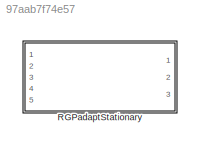
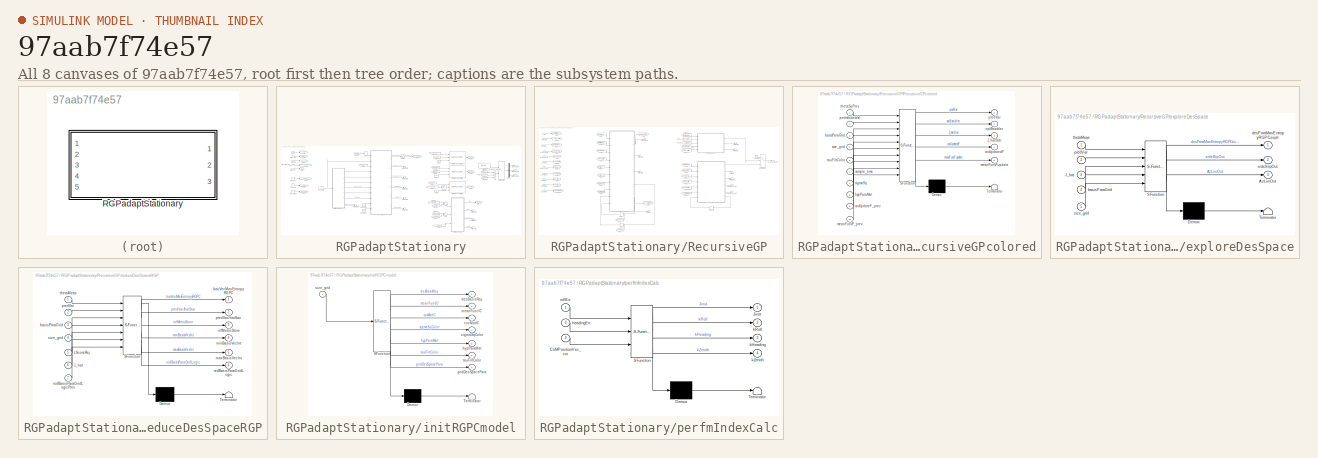
[diagram: thumbnail index - all 8 canvases of the model, root first then tree order]
MODEL slx_97aab7f74e57
KIND library
CONFIG AbsTol = auto
CONFIG EnableMultiTasking = off
CONFIG FixedStep = auto
CONFIG MaxStep = auto
CONFIG MinStep = auto
CONFIG RelTol = 1e-3
CONFIG SampleTimeConstraint = Unconstrained
CONFIG Solver = VariableStepAuto
CONFIG SolverName = VariableStepAuto
CONFIG StartTime = 0.0
CONFIG StopTime = 10.0
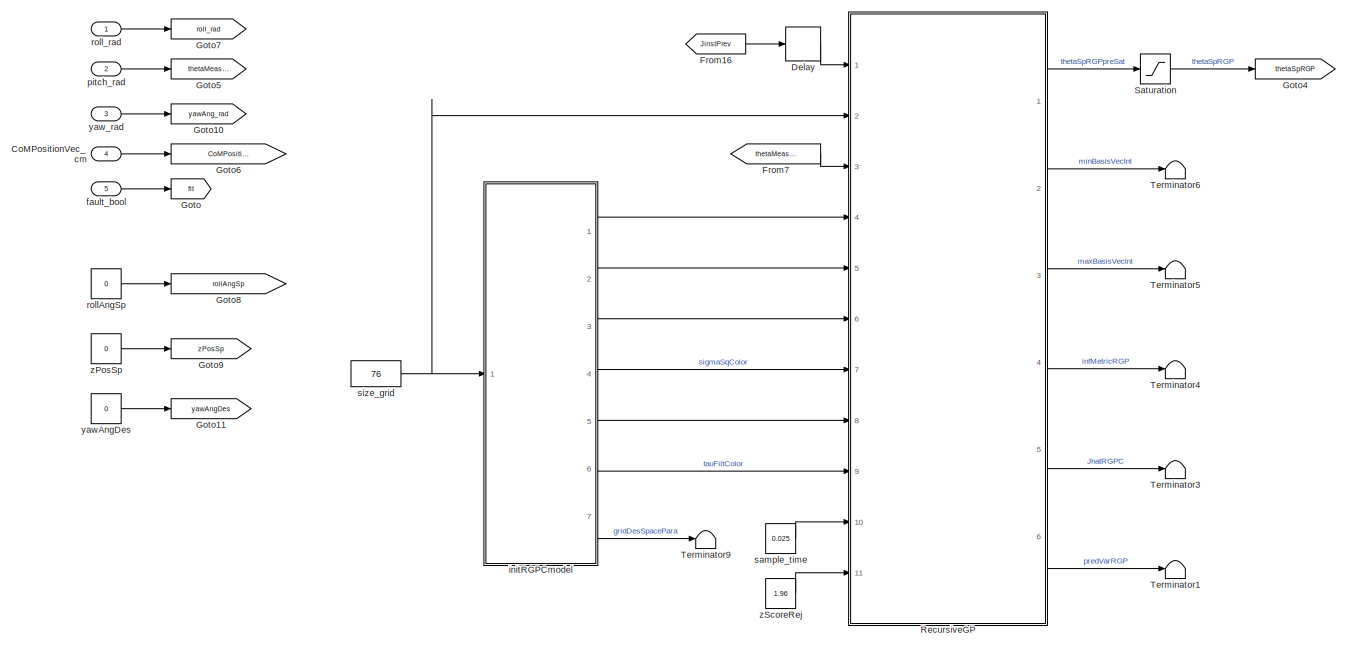
[diagram: RGPadaptStationary - part 1/2, left side, full height]
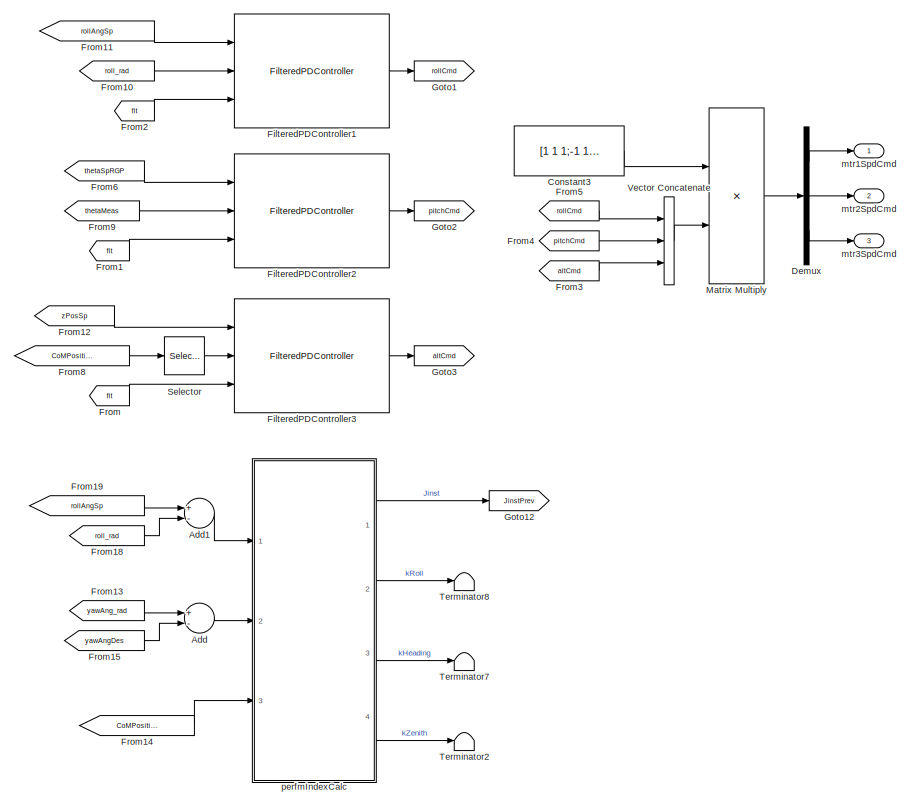
[diagram: RGPadaptStationary - part 2/2, right side, full height]
BLOCK [SubSystem] RGPadaptStationary
  Ports = [5, 3]
  RequestExecContextInheritance = off
BLOCK [Sum] RGPadaptStationary/Add
  InputSameDT = off
  Inputs = +-
  OutDataTypeStr = Inherit: Inherit via internal rule
  Ports = [2, 1]
  SaturateOnIntegerOverflow = off
BLOCK [Sum] RGPadaptStationary/Add1
  InputSameDT = off
  Inputs = +-
  OutDataTypeStr = Inherit: Inherit via internal rule
  Ports = [2, 1]
  SaturateOnIntegerOverflow = off
BLOCK [Inport] RGPadaptStationary/CoMPositionVec_cm
  IconDisplay = Port number
  Port = 4
BLOCK [Constant] RGPadaptStationary/Constant3
  Value = [1 1 1;-1 1 1;0 -1 1]
BLOCK [Delay] RGPadaptStationary/Delay
  DelayLength = 1
  InputPortMap = u0
  Ports = [1, 1]
BLOCK [Demux] RGPadaptStationary/Demux
  DisplayOption = bar
  Outputs = 3
  Ports = [1, 3]
BLOCK [Reference] RGPadaptStationary/FilteredPDController1  REF=filteredPDController_ul/FilteredPDController
  Ports = [3, 1]
  SourceBlock = filteredPDController_ul/FilteredPDController
BLOCK [Reference] RGPadaptStationary/FilteredPDController2  REF=filteredPDController_ul/FilteredPDController
  Ports = [3, 1]
  SourceBlock = filteredPDController_ul/FilteredPDController
BLOCK [Reference] RGPadaptStationary/FilteredPDController3  REF=filteredPDController_ul/FilteredPDController
  Ports = [3, 1]
  SourceBlock = filteredPDController_ul/FilteredPDController
BLOCK [From] RGPadaptStationary/From
  GotoTag = flt
BLOCK [From] RGPadaptStationary/From1
  GotoTag = flt
BLOCK [From] RGPadaptStationary/From10
  GotoTag = roll_rad
BLOCK [From] RGPadaptStationary/From11
  GotoTag = rollAngSp
BLOCK [From] RGPadaptStationary/From12
  GotoTag = zPosSp
BLOCK [From] RGPadaptStationary/From13
  GotoTag = yawAng_rad
BLOCK [From] RGPadaptStationary/From14
  GotoTag = CoMPositionVec_cm
BLOCK [From] RGPadaptStationary/From15
  GotoTag = yawAngDes
BLOCK [From] RGPadaptStationary/From16
  GotoTag = JinstPrev
BLOCK [From] RGPadaptStationary/From18
  GotoTag = roll_rad
BLOCK [From] RGPadaptStationary/From19
  GotoTag = rollAngSp
BLOCK [From] RGPadaptStationary/From2
  GotoTag = flt
BLOCK [From] RGPadaptStationary/From3
  GotoTag = altCmd
BLOCK [From] RGPadaptStationary/From4
  GotoTag = pitchCmd
BLOCK [From] RGPadaptStationary/From5
  GotoTag = rollCmd
BLOCK [From] RGPadaptStationary/From6
  GotoTag = thetaSpRGP
BLOCK [From] RGPadaptStationary/From7
  GotoTag = thetaMeas_rad
BLOCK [From] RGPadaptStationary/From8
  GotoTag = CoMPositionVec_cm
BLOCK [From] RGPadaptStationary/From9
  GotoTag = thetaMeas
BLOCK [Goto] RGPadaptStationary/Goto
  GotoTag = flt
BLOCK [Goto] RGPadaptStationary/Goto1
  GotoTag = rollCmd
BLOCK [Goto] RGPadaptStationary/Goto10
  GotoTag = yawAng_rad
BLOCK [Goto] RGPadaptStationary/Goto11
  GotoTag = yawAngDes
BLOCK [Goto] RGPadaptStationary/Goto12
  GotoTag = JinstPrev
BLOCK [Goto] RGPadaptStationary/Goto2
  GotoTag = pitchCmd
BLOCK [Goto] RGPadaptStationary/Goto3
  GotoTag = altCmd
BLOCK [Goto] RGPadaptStationary/Goto4
  GotoTag = thetaSpRGP
BLOCK [Goto] RGPadaptStationary/Goto5
  GotoTag = thetaMeas_rad
BLOCK [Goto] RGPadaptStationary/Goto6
  GotoTag = CoMPositionVec_cm
BLOCK [Goto] RGPadaptStationary/Goto7
  GotoTag = roll_rad
BLOCK [Goto] RGPadaptStationary/Goto8
  GotoTag = rollAngSp
BLOCK [Goto] RGPadaptStationary/Goto9
  GotoTag = zPosSp
BLOCK [Product] RGPadaptStationary/Matrix Multiply
  InputSameDT = off
  Multiplication = Matrix(*)
  OutDataTypeStr = Inherit: Inherit via internal rule
  Ports = [2, 1]
  RndMeth = Floor
  SaturateOnIntegerOverflow = off
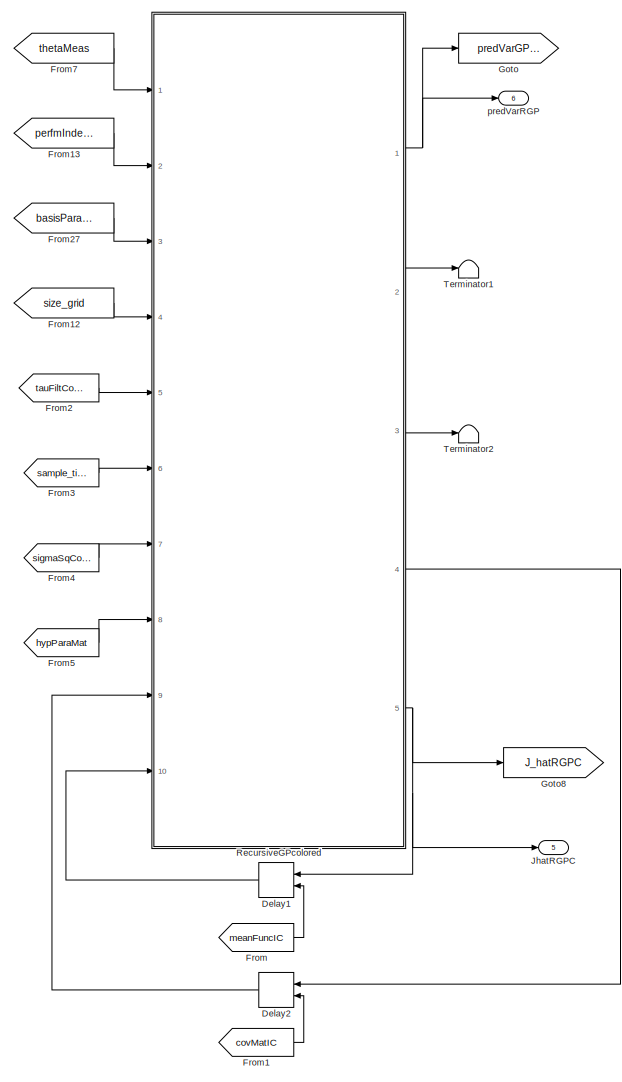
[diagram: RGPadaptStationary/RecursiveGP - part 1/3, center side, full height]
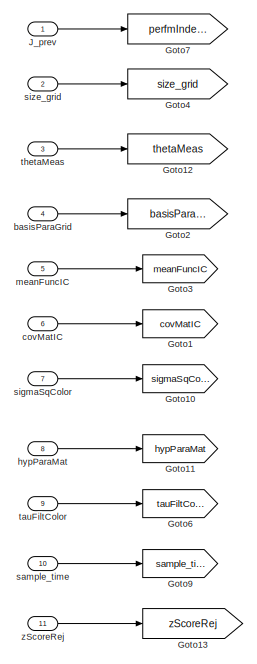
[diagram: RGPadaptStationary/RecursiveGP - part 2/3, top left region]
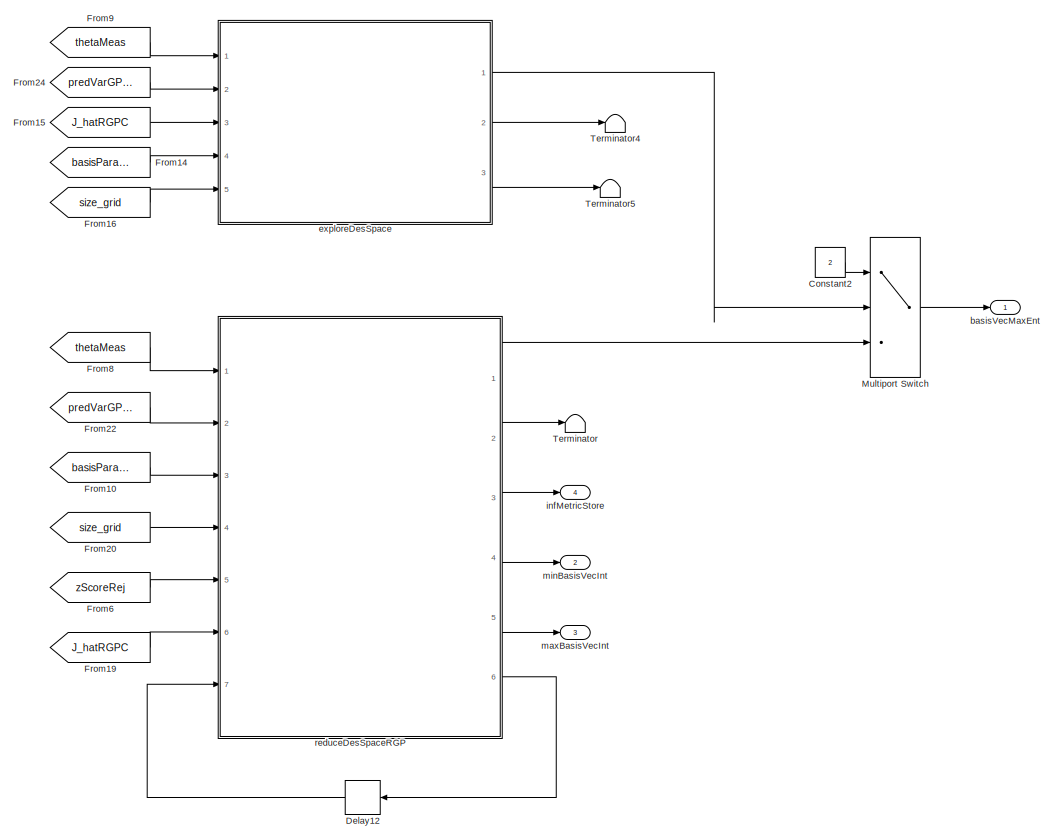
[diagram: RGPadaptStationary/RecursiveGP - part 3/3, right side, full height]
BLOCK [SubSystem] RGPadaptStationary/RecursiveGP
  Ports = [11, 6]
  RequestExecContextInheritance = off
BLOCK [Constant] RGPadaptStationary/RecursiveGP/Constant2
  Value = 2
BLOCK [Delay] RGPadaptStationary/RecursiveGP/Delay1
  DelayLength = 1
  InitialCondition = 0.07*ones(size_grid,1)
  InitialConditionSource = Input port
  InputPortMap = u0,p4
  Ports = [2, 1]
BLOCK [Delay] RGPadaptStationary/RecursiveGP/Delay12
  DelayLength = 1
  InitialCondition = redBasisParaGridLogicIC
  InputPortMap = u0
  Ports = [1, 1]
BLOCK [Delay] RGPadaptStationary/RecursiveGP/Delay2
  DelayLength = 1
  InitialCondition = basisCovNorm*sigmaSqColor
  InitialConditionSource = Input port
  InputPortMap = u0,p4
  Ports = [2, 1]
BLOCK [From] RGPadaptStationary/RecursiveGP/From
  GotoTag = meanFuncIC
BLOCK [From] RGPadaptStationary/RecursiveGP/From1
  GotoTag = covMatIC
BLOCK [From] RGPadaptStationary/RecursiveGP/From10
  GotoTag = basisParaGrid
BLOCK [From] RGPadaptStationary/RecursiveGP/From12
  GotoTag = size_grid
BLOCK [From] RGPadaptStationary/RecursiveGP/From13
  GotoTag = perfmIndexVal
BLOCK [From] RGPadaptStationary/RecursiveGP/From14
  GotoTag = basisParaGrid
BLOCK [From] RGPadaptStationary/RecursiveGP/From15
  GotoTag = J_hatRGPC
BLOCK [From] RGPadaptStationary/RecursiveGP/From16
  GotoTag = size_grid
BLOCK [From] RGPadaptStationary/RecursiveGP/From19
  GotoTag = J_hatRGPC
BLOCK [From] RGPadaptStationary/RecursiveGP/From2
  GotoTag = tauFiltColor
BLOCK [From] RGPadaptStationary/RecursiveGP/From20
  GotoTag = size_grid
BLOCK [From] RGPadaptStationary/RecursiveGP/From22
  GotoTag = predVarGPColored
BLOCK [From] RGPadaptStationary/RecursiveGP/From24
  GotoTag = predVarGPColored
BLOCK [From] RGPadaptStationary/RecursiveGP/From27
  GotoTag = basisParaGrid
BLOCK [From] RGPadaptStationary/RecursiveGP/From3
  GotoTag = sample_time
BLOCK [From] RGPadaptStationary/RecursiveGP/From4
  GotoTag = sigmaSqColor
BLOCK [From] RGPadaptStationary/RecursiveGP/From5
  GotoTag = hypParaMat
BLOCK [From] RGPadaptStationary/RecursiveGP/From6
  GotoTag = zScoreRej
BLOCK [From] RGPadaptStationary/RecursiveGP/From7
  GotoTag = thetaMeas
BLOCK [From] RGPadaptStationary/RecursiveGP/From8
  GotoTag = thetaMeas
BLOCK [From] RGPadaptStationary/RecursiveGP/From9
  GotoTag = thetaMeas
BLOCK [Goto] RGPadaptStationary/RecursiveGP/Goto
  GotoTag = predVarGPColored
BLOCK [Goto] RGPadaptStationary/RecursiveGP/Goto1
  GotoTag = covMatIC
BLOCK [Goto] RGPadaptStationary/RecursiveGP/Goto10
  GotoTag = sigmaSqColor
BLOCK [Goto] RGPadaptStationary/RecursiveGP/Goto11
  GotoTag = hypParaMat
BLOCK [Goto] RGPadaptStationary/RecursiveGP/Goto12
  GotoTag = thetaMeas
BLOCK [Goto] RGPadaptStationary/RecursiveGP/Goto13
  GotoTag = zScoreRej
BLOCK [Goto] RGPadaptStationary/RecursiveGP/Goto2
  GotoTag = basisParaGrid
BLOCK [Goto] RGPadaptStationary/RecursiveGP/Goto3
  GotoTag = meanFuncIC
BLOCK [Goto] RGPadaptStationary/RecursiveGP/Goto4
  GotoTag = size_grid
BLOCK [Goto] RGPadaptStationary/RecursiveGP/Goto6
  GotoTag = tauFiltColor
BLOCK [Goto] RGPadaptStationary/RecursiveGP/Goto7
  GotoTag = perfmIndexVal
BLOCK [Goto] RGPadaptStationary/RecursiveGP/Goto8
  GotoTag = J_hatRGPC
BLOCK [Goto] RGPadaptStationary/RecursiveGP/Goto9
  GotoTag = sample_time
BLOCK [Inport] RGPadaptStationary/RecursiveGP/J_prev
  IconDisplay = Port number
BLOCK [Outport] RGPadaptStationary/RecursiveGP/JhatRGPC
  IconDisplay = Port number
  InitialOutput = size_grid
  Port = 5
BLOCK [MultiPortSwitch] RGPadaptStationary/RecursiveGP/Multiport Switch
  InputSameDT = off
  Inputs = 2
  Ports = [3, 1]
  SaturateOnIntegerOverflow = off
BLOCK [SubSystem] RGPadaptStationary/RecursiveGP/RecursiveGPcolored
  ErrorFcn = Stateflow.Translate.translate
  PermitHierarchicalResolution = ExplicitOnly
  Ports = [10, 5]
  RequestExecContextInheritance = off
  SFBlockType = MATLAB Function
  TreatAsAtomicUnit = on
BLOCK [Demux] RGPadaptStationary/RecursiveGP/RecursiveGPcolored/ Demux 
  Outputs = 1
  Ports = [1, 1]
BLOCK [S-Function] RGPadaptStationary/RecursiveGP/RecursiveGPcolored/ SFunction 
  EnableBusSupport = off
  FunctionName = sf_sfun
  PortCounts = [10 6]
  Ports = [10, 6]
  SFcnIsStateOwnerBlock = off
  SFunctionDeploymentMode = off
  Tag = Stateflow S-Function RGPadaptStationary_cl 6
BLOCK [Terminator] RGPadaptStationary/RecursiveGP/RecursiveGPcolored/ Terminator 
BLOCK [Outport] RGPadaptStationary/RecursiveGP/RecursiveGPcolored/J_hatStar
  IconDisplay = Port number
  Port = 3
BLOCK [Inport] RGPadaptStationary/RecursiveGP/RecursiveGPcolored/basisParaGrid
  IconDisplay = Port number
  Port = 3
BLOCK [Inport] RGPadaptStationary/RecursiveGP/RecursiveGPcolored/covUpdateF_prev
  IconDisplay = Port number
  Port = 9
BLOCK [Outport] RGPadaptStationary/RecursiveGP/RecursiveGPcolored/covUpdatedF
  IconDisplay = Port number
  Port = 4
BLOCK [Inport] RGPadaptStationary/RecursiveGP/RecursiveGPcolored/hypParaMat
  IconDisplay = Port number
  Port = 8
BLOCK [Inport] RGPadaptStationary/RecursiveGP/RecursiveGPcolored/meanFuncF_prev
  IconDisplay = Port number
  Port = 10
BLOCK [Outport] RGPadaptStationary/RecursiveGP/RecursiveGPcolored/meanFuncFupdate
  IconDisplay = Port number
  Port = 5
BLOCK [Outport] RGPadaptStationary/RecursiveGP/RecursiveGPcolored/optBasisVec
  IconDisplay = Port number
  Port = 2
BLOCK [Inport] RGPadaptStationary/RecursiveGP/RecursiveGPcolored/perfmIndexVal
  IconDisplay = Port number
  Port = 2
BLOCK [Outport] RGPadaptStationary/RecursiveGP/RecursiveGPcolored/predVar
  IconDisplay = Port number
BLOCK [Inport] RGPadaptStationary/RecursiveGP/RecursiveGPcolored/sample_time
  IconDisplay = Port number
  Port = 6
BLOCK [Inport] RGPadaptStationary/RecursiveGP/RecursiveGPcolored/sigmaSq
  IconDisplay = Port number
  Port = 7
BLOCK [Inport] RGPadaptStationary/RecursiveGP/RecursiveGPcolored/size_grid
  IconDisplay = Port number
  Port = 4
BLOCK [Inport] RGPadaptStationary/RecursiveGP/RecursiveGPcolored/tauFiltColor
  IconDisplay = Port number
  Port = 5
BLOCK [Inport] RGPadaptStationary/RecursiveGP/RecursiveGPcolored/thetaSpPrev
  IconDisplay = Port number
BLOCK [Terminator] RGPadaptStationary/RecursiveGP/Terminator
BLOCK [Terminator] RGPadaptStationary/RecursiveGP/Terminator1
BLOCK [Terminator] RGPadaptStationary/RecursiveGP/Terminator2
BLOCK [Terminator] RGPadaptStationary/RecursiveGP/Terminator4
BLOCK [Terminator] RGPadaptStationary/RecursiveGP/Terminator5
BLOCK [Inport] RGPadaptStationary/RecursiveGP/basisParaGrid
  IconDisplay = Port number
  Port = 4
BLOCK [Outport] RGPadaptStationary/RecursiveGP/basisVecMaxEnt
  IconDisplay = Port number
BLOCK [Inport] RGPadaptStationary/RecursiveGP/covMatIC
  IconDisplay = Port number
  Port = 6
BLOCK [SubSystem] RGPadaptStationary/RecursiveGP/exploreDesSpace
  ErrorFcn = Stateflow.Translate.translate
  PermitHierarchicalResolution = ExplicitOnly
  Ports = [5, 3]
  RequestExecContextInheritance = off
  SFBlockType = MATLAB Function
  TreatAsAtomicUnit = on
BLOCK [Demux] RGPadaptStationary/RecursiveGP/exploreDesSpace/ Demux 
  Outputs = 1
  Ports = [1, 1]
BLOCK [S-Function] RGPadaptStationary/RecursiveGP/exploreDesSpace/ SFunction 
  EnableBusSupport = off
  FunctionName = sf_sfun
  PortCounts = [5 4]
  Ports = [5, 4]
  SFcnIsStateOwnerBlock = off
  SFunctionDeploymentMode = off
  Tag = Stateflow S-Function RGPadaptStationary_cl 10
BLOCK [Terminator] RGPadaptStationary/RecursiveGP/exploreDesSpace/ Terminator 
BLOCK [Outport] RGPadaptStationary/RecursiveGP/exploreDesSpace/AzLimOut
  IconDisplay = Port number
  Port = 3
BLOCK [Inport] RGPadaptStationary/RecursiveGP/exploreDesSpace/J_hat
  IconDisplay = Port number
  Port = 3
BLOCK [Inport] RGPadaptStationary/RecursiveGP/exploreDesSpace/basisParaGrid
  IconDisplay = Port number
  Port = 4
BLOCK [Outport] RGPadaptStationary/RecursiveGP/exploreDesSpace/desParaMaxEntropyRGPCexplr
  IconDisplay = Port number
BLOCK [Inport] RGPadaptStationary/RecursiveGP/exploreDesSpace/predVar
  IconDisplay = Port number
  Port = 2
BLOCK [Outport] RGPadaptStationary/RecursiveGP/exploreDesSpace/sideSlipOut
  IconDisplay = Port number
  Port = 2
BLOCK [Inport] RGPadaptStationary/RecursiveGP/exploreDesSpace/size_grid
  IconDisplay = Port number
  Port = 5
BLOCK [Inport] RGPadaptStationary/RecursiveGP/exploreDesSpace/thetaMeas
  IconDisplay = Port number
BLOCK [Inport] RGPadaptStationary/RecursiveGP/hypParaMat
  IconDisplay = Port number
  Port = 8
BLOCK [Outport] RGPadaptStationary/RecursiveGP/infMetricStore
  IconDisplay = Port number
  InitialOutput = size_grid
  Port = 4
BLOCK [Outport] RGPadaptStationary/RecursiveGP/maxBasisVecInt
  IconDisplay = Port number
  InitialOutput = size_grid
  Port = 3
BLOCK [Inport] RGPadaptStationary/RecursiveGP/meanFuncIC
  IconDisplay = Port number
  Port = 5
BLOCK [Outport] RGPadaptStationary/RecursiveGP/minBasisVecInt
  IconDisplay = Port number
  InitialOutput = [1]
  Port = 2
BLOCK [Outport] RGPadaptStationary/RecursiveGP/predVarRGP
  IconDisplay = Port number
  InitialOutput = size_grid
  Port = 6
BLOCK [SubSystem] RGPadaptStationary/RecursiveGP/reduceDesSpaceRGP
  ErrorFcn = Stateflow.Translate.translate
  PermitHierarchicalResolution = ExplicitOnly
  Ports = [7, 6]
  RequestExecContextInheritance = off
  SFBlockType = MATLAB Function
  TreatAsAtomicUnit = on
BLOCK [Demux] RGPadaptStationary/RecursiveGP/reduceDesSpaceRGP/ Demux 
  Outputs = 1
  Ports = [1, 1]
BLOCK [S-Function] RGPadaptStationary/RecursiveGP/reduceDesSpaceRGP/ SFunction 
  EnableBusSupport = off
  FunctionName = sf_sfun
  PortCounts = [7 7]
  Ports = [7, 7]
  SFcnIsStateOwnerBlock = off
  SFunctionDeploymentMode = off
  Tag = Stateflow S-Function RGPadaptStationary_cl 11
BLOCK [Terminator] RGPadaptStationary/RecursiveGP/reduceDesSpaceRGP/ Terminator 
BLOCK [Inport] RGPadaptStationary/RecursiveGP/reduceDesSpaceRGP/J_hat
  IconDisplay = Port number
  Port = 6
BLOCK [Outport] RGPadaptStationary/RecursiveGP/reduceDesSpaceRGP/basVecMaxEntropyRGPC
  IconDisplay = Port number
BLOCK [Inport] RGPadaptStationary/RecursiveGP/reduceDesSpaceRGP/basisParaGrid
  IconDisplay = Port number
  Port = 3
BLOCK [Outport] RGPadaptStationary/RecursiveGP/reduceDesSpaceRGP/infMetricStore
  IconDisplay = Port number
  Port = 3
BLOCK [Outport] RGPadaptStationary/RecursiveGP/reduceDesSpaceRGP/maxBasisVecInt
  IconDisplay = Port number
  Port = 5
BLOCK [Outport] RGPadaptStationary/RecursiveGP/reduceDesSpaceRGP/minBasisVecInt
  IconDisplay = Port number
  Port = 4
BLOCK [Inport] RGPadaptStationary/RecursiveGP/reduceDesSpaceRGP/predVar
  IconDisplay = Port number
  Port = 2
BLOCK [Outport] RGPadaptStationary/RecursiveGP/reduceDesSpaceRGP/predVarJhatStar
  IconDisplay = Port number
  Port = 2
BLOCK [Outport] RGPadaptStationary/RecursiveGP/reduceDesSpaceRGP/redBasisParaGridLogic
  IconDisplay = Port number
  Port = 6
BLOCK [Inport] RGPadaptStationary/RecursiveGP/reduceDesSpaceRGP/redBasisParaGridLogicPrev
  IconDisplay = Port number
  Port = 7
BLOCK [Inport] RGPadaptStationary/RecursiveGP/reduceDesSpaceRGP/size_grid
  IconDisplay = Port number
  Port = 4
BLOCK [Inport] RGPadaptStationary/RecursiveGP/reduceDesSpaceRGP/thetaMeas
  IconDisplay = Port number
BLOCK [Inport] RGPadaptStationary/RecursiveGP/reduceDesSpaceRGP/zScoreRej
  IconDisplay = Port number
  Port = 5
BLOCK [Inport] RGPadaptStationary/RecursiveGP/sample_time
  IconDisplay = Port number
  Port = 10
BLOCK [Inport] RGPadaptStationary/RecursiveGP/sigmaSqColor
  IconDisplay = Port number
  Port = 7
BLOCK [Inport] RGPadaptStationary/RecursiveGP/size_grid
  IconDisplay = Port number
  Port = 2
BLOCK [Inport] RGPadaptStationary/RecursiveGP/tauFiltColor
  IconDisplay = Port number
  Port = 9
BLOCK [Inport] RGPadaptStationary/RecursiveGP/thetaMeas
  IconDisplay = Port number
  Port = 3
BLOCK [Inport] RGPadaptStationary/RecursiveGP/zScoreRej
  IconDisplay = Port number
  Port = 11
BLOCK [Saturate] RGPadaptStationary/Saturation
  InputPortMap = u0
  LowerLimit = 0*pi/180
  Ports = [1, 1]
  UpperLimit = 20*pi/180
BLOCK [Selector] RGPadaptStationary/Selector
  IndexOptions = Index vector (dialog)
  Indices = 3
  InputPortWidth = 3
  OutputSizes = 1
  Ports = [1, 1]
BLOCK [Terminator] RGPadaptStationary/Terminator1
BLOCK [Terminator] RGPadaptStationary/Terminator2
BLOCK [Terminator] RGPadaptStationary/Terminator3
BLOCK [Terminator] RGPadaptStationary/Terminator4
BLOCK [Terminator] RGPadaptStationary/Terminator5
BLOCK [Terminator] RGPadaptStationary/Terminator6
BLOCK [Terminator] RGPadaptStationary/Terminator7
BLOCK [Terminator] RGPadaptStationary/Terminator8
BLOCK [Terminator] RGPadaptStationary/Terminator9
BLOCK [Concatenate] RGPadaptStationary/Vector Concatenate
  NumInputs = 3
  Ports = [3, 1]
BLOCK [Inport] RGPadaptStationary/fault_bool
  IconDisplay = Port number
  OutDataTypeStr = boolean
  Port = 5
BLOCK [SubSystem] RGPadaptStationary/initRGPCmodel
  ErrorFcn = Stateflow.Translate.translate
  PermitHierarchicalResolution = ExplicitOnly
  Ports = [1, 7]
  RequestExecContextInheritance = off
  SFBlockType = MATLAB Function
  TreatAsAtomicUnit = on
BLOCK [Demux] RGPadaptStationary/initRGPCmodel/ Demux 
  Outputs = 1
  Ports = [1, 1]
BLOCK [S-Function] RGPadaptStationary/initRGPCmodel/ SFunction 
  EnableBusSupport = off
  FunctionName = sf_sfun
  PortCounts = [1 8]
  Ports = [1, 8]
  SFcnIsStateOwnerBlock = off
  SFunctionDeploymentMode = off
  Tag = Stateflow S-Function RGPadaptStationary_cl 15
BLOCK [Terminator] RGPadaptStationary/initRGPCmodel/ Terminator 
BLOCK [Outport] RGPadaptStationary/initRGPCmodel/covMatIC
  IconDisplay = Port number
  Port = 3
BLOCK [Outport] RGPadaptStationary/initRGPCmodel/desBasisRep
  IconDisplay = Port number
BLOCK [Outport] RGPadaptStationary/initRGPCmodel/gridDesSpacePara
  IconDisplay = Port number
  Port = 7
BLOCK [Outport] RGPadaptStationary/initRGPCmodel/hypParaMat
  IconDisplay = Port number
  Port = 5
BLOCK [Outport] RGPadaptStationary/initRGPCmodel/meanFuncIC
  IconDisplay = Port number
  Port = 2
BLOCK [Outport] RGPadaptStationary/initRGPCmodel/sigmaSqColor
  IconDisplay = Port number
  Port = 4
BLOCK [Inport] RGPadaptStationary/initRGPCmodel/size_grid
  IconDisplay = Port number
BLOCK [Outport] RGPadaptStationary/initRGPCmodel/tauFiltColor
  IconDisplay = Port number
  Port = 6
BLOCK [Outport] RGPadaptStationary/mtr1SpdCmd
  IconDisplay = Port number
BLOCK [Outport] RGPadaptStationary/mtr2SpdCmd
  IconDisplay = Port number
  Port = 2
BLOCK [Outport] RGPadaptStationary/mtr3SpdCmd
  IconDisplay = Port number
  Port = 3
BLOCK [SubSystem] RGPadaptStationary/perfmIndexCalc
  ErrorFcn = Stateflow.Translate.translate
  PermitHierarchicalResolution = ExplicitOnly
  Ports = [3, 4]
  RequestExecContextInheritance = off
  SFBlockType = MATLAB Function
  TreatAsAtomicUnit = on
BLOCK [Demux] RGPadaptStationary/perfmIndexCalc/ Demux 
  Outputs = 1
  Ports = [1, 1]
BLOCK [S-Function] RGPadaptStationary/perfmIndexCalc/ SFunction 
  EnableBusSupport = off
  FunctionName = sf_sfun
  PortCounts = [3 5]
  Ports = [3, 5]
  SFcnIsStateOwnerBlock = off
  SFunctionDeploymentMode = off
  Tag = Stateflow S-Function RGPadaptStationary_cl 1
BLOCK [Terminator] RGPadaptStationary/perfmIndexCalc/ Terminator 
BLOCK [Inport] RGPadaptStationary/perfmIndexCalc/CoMPositionVec_cm
  IconDisplay = Port number
  Port = 3
BLOCK [Outport] RGPadaptStationary/perfmIndexCalc/Jinst
  IconDisplay = Port number
BLOCK [Inport] RGPadaptStationary/perfmIndexCalc/headingErr
  IconDisplay = Port number
  Port = 2
BLOCK [Outport] RGPadaptStationary/perfmIndexCalc/kHeading
  IconDisplay = Port number
  Port = 3
BLOCK [Outport] RGPadaptStationary/perfmIndexCalc/kRoll
  IconDisplay = Port number
  Port = 2
BLOCK [Outport] RGPadaptStationary/perfmIndexCalc/kZenith
  IconDisplay = Port number
  Port = 4
BLOCK [Inport] RGPadaptStationary/perfmIndexCalc/rollErr
  IconDisplay = Port number
BLOCK [Inport] RGPadaptStationary/pitch_rad
  IconDisplay = Port number
  Port = 2
BLOCK [Constant] RGPadaptStationary/rollAngSp
  Value = 0
BLOCK [Inport] RGPadaptStationary/roll_rad
  IconDisplay = Port number
BLOCK [Constant] RGPadaptStationary/sample_time
  Value = 0.025
BLOCK [Constant] RGPadaptStationary/size_grid
  Value = 76
BLOCK [Constant] RGPadaptStationary/yawAngDes
  Value = 0
BLOCK [Inport] RGPadaptStationary/yaw_rad
  IconDisplay = Port number
  Port = 3
BLOCK [Constant] RGPadaptStationary/zPosSp
  Value = 0
BLOCK [Constant] RGPadaptStationary/zScoreRej
  Value = 1.96
LINE RGPadaptStationary/Add1:1 -> RGPadaptStationary/perfmIndexCalc:1
LINE RGPadaptStationary/Add:1 -> RGPadaptStationary/perfmIndexCalc:2
LINE RGPadaptStationary/CoMPositionVec_cm:1 -> RGPadaptStationary/Goto6:1
LINE RGPadaptStationary/Constant3:1 -> RGPadaptStationary/Matrix Multiply:1
LINE RGPadaptStationary/Delay:1 -> RGPadaptStationary/RecursiveGP:1
LINE RGPadaptStationary/Demux:1 -> RGPadaptStationary/mtr1SpdCmd:1
LINE RGPadaptStationary/Demux:2 -> RGPadaptStationary/mtr2SpdCmd:1
LINE RGPadaptStationary/Demux:3 -> RGPadaptStationary/mtr3SpdCmd:1
LINE RGPadaptStationary/FilteredPDController1:1 -> RGPadaptStationary/Goto1:1
LINE RGPadaptStationary/FilteredPDController2:1 -> RGPadaptStationary/Goto2:1
LINE RGPadaptStationary/FilteredPDController3:1 -> RGPadaptStationary/Goto3:1
LINE RGPadaptStationary/From10:1 -> RGPadaptStationary/FilteredPDController1:2
LINE RGPadaptStationary/From11:1 -> RGPadaptStationary/FilteredPDController1:1
LINE RGPadaptStationary/From12:1 -> RGPadaptStationary/FilteredPDController3:1
LINE RGPadaptStationary/From13:1 -> RGPadaptStationary/Add:1
LINE RGPadaptStationary/From14:1 -> RGPadaptStationary/perfmIndexCalc:3
LINE RGPadaptStationary/From15:1 -> RGPadaptStationary/Add:2
LINE RGPadaptStationary/From16:1 -> RGPadaptStationary/Delay:1
LINE RGPadaptStationary/From18:1 -> RGPadaptStationary/Add1:2
LINE RGPadaptStationary/From19:1 -> RGPadaptStationary/Add1:1
LINE RGPadaptStationary/From1:1 -> RGPadaptStationary/FilteredPDController2:3
LINE RGPadaptStationary/From2:1 -> RGPadaptStationary/FilteredPDController1:3
LINE RGPadaptStationary/From3:1 -> RGPadaptStationary/Vector Concatenate:3
LINE RGPadaptStationary/From4:1 -> RGPadaptStationary/Vector Concatenate:2
LINE RGPadaptStationary/From5:1 -> RGPadaptStationary/Vector Concatenate:1
LINE RGPadaptStationary/From6:1 -> RGPadaptStationary/FilteredPDController2:1
LINE RGPadaptStationary/From7:1 -> RGPadaptStationary/RecursiveGP:3
LINE RGPadaptStationary/From8:1 -> RGPadaptStationary/Selector:1
LINE RGPadaptStationary/From9:1 -> RGPadaptStationary/FilteredPDController2:2
LINE RGPadaptStationary/From:1 -> RGPadaptStationary/FilteredPDController3:3
LINE RGPadaptStationary/Matrix Multiply:1 -> RGPadaptStationary/Demux:1
LINE RGPadaptStationary/RecursiveGP/Constant2:1 -> RGPadaptStationary/RecursiveGP/Multiport Switch:1
LINE RGPadaptStationary/RecursiveGP/Delay12:1 -> RGPadaptStationary/RecursiveGP/reduceDesSpaceRGP:7
LINE RGPadaptStationary/RecursiveGP/Delay1:1 -> RGPadaptStationary/RecursiveGP/RecursiveGPcolored:10
LINE RGPadaptStationary/RecursiveGP/Delay2:1 -> RGPadaptStationary/RecursiveGP/RecursiveGPcolored:9
LINE RGPadaptStationary/RecursiveGP/From10:1 -> RGPadaptStationary/RecursiveGP/reduceDesSpaceRGP:3
LINE RGPadaptStationary/RecursiveGP/From12:1 -> RGPadaptStationary/RecursiveGP/RecursiveGPcolored:4
LINE RGPadaptStationary/RecursiveGP/From13:1 -> RGPadaptStationary/RecursiveGP/RecursiveGPcolored:2
LINE RGPadaptStationary/RecursiveGP/From14:1 -> RGPadaptStationary/RecursiveGP/exploreDesSpace:4
LINE RGPadaptStationary/RecursiveGP/From15:1 -> RGPadaptStationary/RecursiveGP/exploreDesSpace:3
LINE RGPadaptStationary/RecursiveGP/From16:1 -> RGPadaptStationary/RecursiveGP/exploreDesSpace:5
LINE RGPadaptStationary/RecursiveGP/From19:1 -> RGPadaptStationary/RecursiveGP/reduceDesSpaceRGP:6
LINE RGPadaptStationary/RecursiveGP/From1:1 -> RGPadaptStationary/RecursiveGP/Delay2:2
LINE RGPadaptStationary/RecursiveGP/From20:1 -> RGPadaptStationary/RecursiveGP/reduceDesSpaceRGP:4
LINE RGPadaptStationary/RecursiveGP/From22:1 -> RGPadaptStationary/RecursiveGP/reduceDesSpaceRGP:2
LINE RGPadaptStationary/RecursiveGP/From24:1 -> RGPadaptStationary/RecursiveGP/exploreDesSpace:2
LINE RGPadaptStationary/RecursiveGP/From27:1 -> RGPadaptStationary/RecursiveGP/RecursiveGPcolored:3
LINE RGPadaptStationary/RecursiveGP/From2:1 -> RGPadaptStationary/RecursiveGP/RecursiveGPcolored:5
LINE RGPadaptStationary/RecursiveGP/From3:1 -> RGPadaptStationary/RecursiveGP/RecursiveGPcolored:6
LINE RGPadaptStationary/RecursiveGP/From4:1 -> RGPadaptStationary/RecursiveGP/RecursiveGPcolored:7
LINE RGPadaptStationary/RecursiveGP/From5:1 -> RGPadaptStationary/RecursiveGP/RecursiveGPcolored:8
LINE RGPadaptStationary/RecursiveGP/From6:1 -> RGPadaptStationary/RecursiveGP/reduceDesSpaceRGP:5
LINE RGPadaptStationary/RecursiveGP/From7:1 -> RGPadaptStationary/RecursiveGP/RecursiveGPcolored:1
LINE RGPadaptStationary/RecursiveGP/From8:1 -> RGPadaptStationary/RecursiveGP/reduceDesSpaceRGP:1
LINE RGPadaptStationary/RecursiveGP/From9:1 -> RGPadaptStationary/RecursiveGP/exploreDesSpace:1
LINE RGPadaptStationary/RecursiveGP/From:1 -> RGPadaptStationary/RecursiveGP/Delay1:2
LINE RGPadaptStationary/RecursiveGP/J_prev:1 -> RGPadaptStationary/RecursiveGP/Goto7:1
LINE RGPadaptStationary/RecursiveGP/Multiport Switch:1 -> RGPadaptStationary/RecursiveGP/basisVecMaxEnt:1
NET RGPadaptStationary/RecursiveGP/RecursiveGPcolored:1 -> RGPadaptStationary/RecursiveGP/Goto:1, RGPadaptStationary/RecursiveGP/predVarRGP:1
LINE RGPadaptStationary/RecursiveGP/RecursiveGPcolored:2 -> RGPadaptStationary/RecursiveGP/Terminator1:1
LINE RGPadaptStationary/RecursiveGP/RecursiveGPcolored:3 -> RGPadaptStationary/RecursiveGP/Terminator2:1
LINE RGPadaptStationary/RecursiveGP/RecursiveGPcolored:4 -> RGPadaptStationary/RecursiveGP/Delay2:1
NET RGPadaptStationary/RecursiveGP/RecursiveGPcolored:5 -> RGPadaptStationary/RecursiveGP/Delay1:1, RGPadaptStationary/RecursiveGP/Goto8:1, RGPadaptStationary/RecursiveGP/JhatRGPC:1
LINE RGPadaptStationary/RecursiveGP/basisParaGrid:1 -> RGPadaptStationary/RecursiveGP/Goto2:1
LINE RGPadaptStationary/RecursiveGP/covMatIC:1 -> RGPadaptStationary/RecursiveGP/Goto1:1
LINE RGPadaptStationary/RecursiveGP/exploreDesSpace:1 -> RGPadaptStationary/RecursiveGP/Multiport Switch:2
LINE RGPadaptStationary/RecursiveGP/exploreDesSpace:2 -> RGPadaptStationary/RecursiveGP/Terminator4:1
LINE RGPadaptStationary/RecursiveGP/exploreDesSpace:3 -> RGPadaptStationary/RecursiveGP/Terminator5:1
LINE RGPadaptStationary/RecursiveGP/hypParaMat:1 -> RGPadaptStationary/RecursiveGP/Goto11:1
LINE RGPadaptStationary/RecursiveGP/meanFuncIC:1 -> RGPadaptStationary/RecursiveGP/Goto3:1
LINE RGPadaptStationary/RecursiveGP/reduceDesSpaceRGP:1 -> RGPadaptStationary/RecursiveGP/Multiport Switch:3
LINE RGPadaptStationary/RecursiveGP/reduceDesSpaceRGP:2 -> RGPadaptStationary/RecursiveGP/Terminator:1
LINE RGPadaptStationary/RecursiveGP/reduceDesSpaceRGP:3 -> RGPadaptStationary/RecursiveGP/infMetricStore:1
LINE RGPadaptStationary/RecursiveGP/reduceDesSpaceRGP:4 -> RGPadaptStationary/RecursiveGP/minBasisVecInt:1
LINE RGPadaptStationary/RecursiveGP/reduceDesSpaceRGP:5 -> RGPadaptStationary/RecursiveGP/maxBasisVecInt:1
LINE RGPadaptStationary/RecursiveGP/reduceDesSpaceRGP:6 -> RGPadaptStationary/RecursiveGP/Delay12:1
LINE RGPadaptStationary/RecursiveGP/sample_time:1 -> RGPadaptStationary/RecursiveGP/Goto9:1
LINE RGPadaptStationary/RecursiveGP/sigmaSqColor:1 -> RGPadaptStationary/RecursiveGP/Goto10:1
LINE RGPadaptStationary/RecursiveGP/size_grid:1 -> RGPadaptStationary/RecursiveGP/Goto4:1
LINE RGPadaptStationary/RecursiveGP/tauFiltColor:1 -> RGPadaptStationary/RecursiveGP/Goto6:1
LINE RGPadaptStationary/RecursiveGP/thetaMeas:1 -> RGPadaptStationary/RecursiveGP/Goto12:1
LINE RGPadaptStationary/RecursiveGP/zScoreRej:1 -> RGPadaptStationary/RecursiveGP/Goto13:1
LINE RGPadaptStationary/RecursiveGP:1 -> RGPadaptStationary/Saturation:1
LINE RGPadaptStationary/RecursiveGP:2 -> RGPadaptStationary/Terminator6:1
LINE RGPadaptStationary/RecursiveGP:3 -> RGPadaptStationary/Terminator5:1
LINE RGPadaptStationary/RecursiveGP:4 -> RGPadaptStationary/Terminator4:1
LINE RGPadaptStationary/RecursiveGP:5 -> RGPadaptStationary/Terminator3:1
LINE RGPadaptStationary/RecursiveGP:6 -> RGPadaptStationary/Terminator1:1
LINE RGPadaptStationary/Saturation:1 -> RGPadaptStationary/Goto4:1
LINE RGPadaptStationary/Selector:1 -> RGPadaptStationary/FilteredPDController3:2
LINE RGPadaptStationary/Vector Concatenate:1 -> RGPadaptStationary/Matrix Multiply:2
LINE RGPadaptStationary/fault_bool:1 -> RGPadaptStationary/Goto:1
LINE RGPadaptStationary/initRGPCmodel:1 -> RGPadaptStationary/RecursiveGP:4
LINE RGPadaptStationary/initRGPCmodel:2 -> RGPadaptStationary/RecursiveGP:5
LINE RGPadaptStationary/initRGPCmodel:3 -> RGPadaptStationary/RecursiveGP:6
LINE RGPadaptStationary/initRGPCmodel:4 -> RGPadaptStationary/RecursiveGP:7
LINE RGPadaptStationary/initRGPCmodel:5 -> RGPadaptStationary/RecursiveGP:8
LINE RGPadaptStationary/initRGPCmodel:6 -> RGPadaptStationary/RecursiveGP:9
LINE RGPadaptStationary/initRGPCmodel:7 -> RGPadaptStationary/Terminator9:1
LINE RGPadaptStationary/perfmIndexCalc:1 -> RGPadaptStationary/Goto12:1
LINE RGPadaptStationary/perfmIndexCalc:2 -> RGPadaptStationary/Terminator8:1
LINE RGPadaptStationary/perfmIndexCalc:3 -> RGPadaptStationary/Terminator7:1
LINE RGPadaptStationary/perfmIndexCalc:4 -> RGPadaptStationary/Terminator2:1
LINE RGPadaptStationary/pitch_rad:1 -> RGPadaptStationary/Goto5:1
LINE RGPadaptStationary/rollAngSp:1 -> RGPadaptStationary/Goto8:1
LINE RGPadaptStationary/roll_rad:1 -> RGPadaptStationary/Goto7:1
LINE RGPadaptStationary/sample_time:1 -> RGPadaptStationary/RecursiveGP:10
NET RGPadaptStationary/size_grid:1 -> RGPadaptStationary/RecursiveGP:2, RGPadaptStationary/initRGPCmodel:1
LINE RGPadaptStationary/yawAngDes:1 -> RGPadaptStationary/Goto11:1
LINE RGPadaptStationary/yaw_rad:1 -> RGPadaptStationary/Goto10:1
LINE RGPadaptStationary/zPosSp:1 -> RGPadaptStationary/Goto9:1
LINE RGPadaptStationary/zScoreRej:1 -> RGPadaptStationary/RecursiveGP:11
note: NET lines group one-source signal fan-out (src -> all destinations, sorted); 1:1 wires keep LINE
CHART RGPadaptStationary/perfmIndexCalc states=1 transitions=1
  STATE_LABEL 'eML_blk_kernel()'
  STATE_LABEL 'SCRIPT:\nfunction [Jinst,kRoll,kHeading,kZenith]  = objFuncCalc(rollErr,headingErr,CoMPositionVec_cm)\n\nzenithAng = atan2(CoMPositionVec_cm(1),CoMPositionVec_cm(3));\n\n% Objective function gains. \nkRoll = 1;\nkHeading = 1;\nkZenith = 1;\n\n% Objective function structure for stationary flight\nJinst = kRoll*rollErr^2 + kHeading*headingErr^2 + kZenith*zenithAng^2;  \n\n'
CHART RGPadaptStationary/RecursiveGP/RecursiveGPcolored states=1 transitions=1
  STATE_LABEL 'eML_blk_kernel()'
  STATE_LABEL 'SCRIPT:\nfunction [predVar,optBasisVec,J_hatStar,covUpdatedF,... \n    meanFuncFupdate]  = RecursiveGPcolored(thetaSpPrev,perfmIndexVal,basisParaGrid,size_grid,... \n    tauFiltColor,sample_time,sigmaSq,hypParaMat,...\n    covUpdateF_prev,meanFuncF_prev)\n% Preallocation, which may not actually be required here. \npredVar = ones(size_grid,1);\nstateTransMat = ones(size_grid,size_grid);\n\n% Convert continu...<+3029ch>'
CHART RGPadaptStationary/RecursiveGP/exploreDesSpace states=1 transitions=1
  STATE_LABEL 'eML_blk_kernel()'
  STATE_LABEL "SCRIPT:\nfunction [desParaMaxEntropyRGPCexplr,sideSlipOut,AzLimOut] = Reduce(thetaMeas,predVar,J_hat,basisParaGrid,size_grid)\n\n    % This block simply selects the basis vector that maximizes prediction\n    % variance. Essentially, this just doesn't include design space\n    % reduction.\n\n    dist_update = zeros(size_grid,1);\n    [J_hatStar,idx_JhatStar] = min(J_hat);\n    \n    prevDesPara = thetaMeas...<+484ch>"
CHART RGPadaptStationary/RecursiveGP/reduceDesSpaceRGP states=1 transitions=1
  STATE_LABEL 'eML_blk_kernel()'
  STATE_LABEL "SCRIPT:\nfunction [basVecMaxEntropyRGPC,predVarJhatStar,infMetricStore,minBasisVecInt,... \n    maxBasisVecInt,redBasisParaGridLogic] = ReduceColored(thetaMeas,predVar,basisParaGrid,... \n    size_grid,zScoreRej,J_hat,redBasisParaGridLogicPrev)\n    \n    prevDesParam = thetaMeas;\n    \n    checkLoop = 0;\n%     basisVecMinCheck = [10*ones(size_grid,1) 10*ones(size_grid,1)]';\n%     basisVecMaxCheck = [-1...<+3608ch>"
CHART RGPadaptStationary/initRGPCmodel states=1 transitions=1
  STATE_LABEL 'eML_blk_kernel()'
  STATE_LABEL 'SCRIPT:\nfunction [desBasisRep,meanFuncIC,covMatIC,sigmaSqColor,hypParaMat,... \n    tauFiltColor,gridDesSpacePara]  = RGPinit(size_grid)\n\n% Preallocation of the covariance matrix\ncovMatIC = zeros(size_grid,size_grid);\n\n% Initialize the mean function approximation\nmeanFuncIC = 0.07*ones(size_grid,1);\n\n% Basis vectors for roll period (in seconds)\nthetaMax = 20*(pi/180);\nthetaMin = 0*(pi/180);\ndesBasi...<+580ch>'
